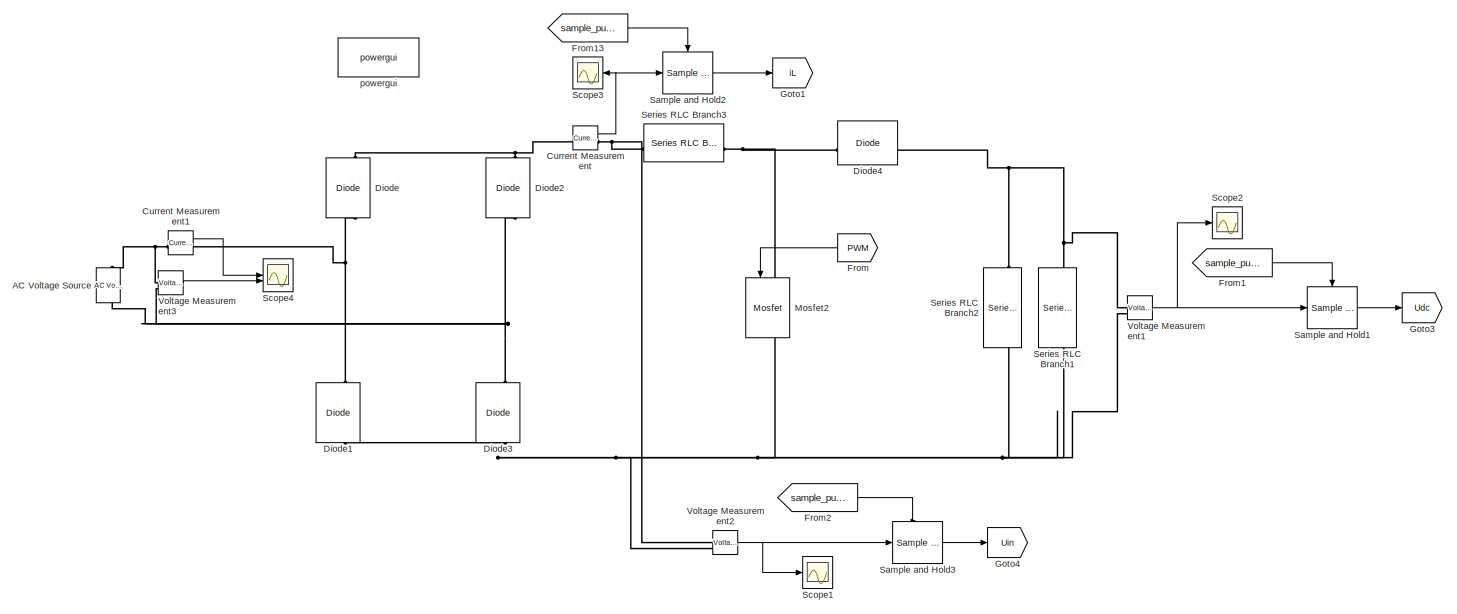
[diagram: root canvas - part 1/2, full width, top band]
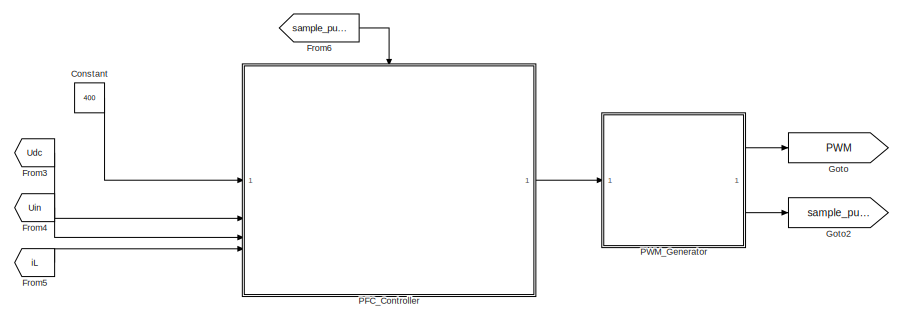
[diagram: root canvas - part 2/2, bottom center region]
MODEL slx_300bfa380520
KIND model
CONFIG AbsTol = auto
CONFIG EnableMultiTasking = off
CONFIG FixedStep = auto
CONFIG MaxStep = 1e-8
CONFIG MinStep = auto
CONFIG RelTol = 1e-7
CONFIG SampleTimeConstraint = Unconstrained
CONFIG SolverName = VariableStepAuto
CONFIG StartTime = 0.0
CONFIG StopTime = 1
BLOCK [Reference] AC Voltage Source  REF=spsACVoltageSourceLib/AC Voltage Source
  LibrarySourceBlock = sps_lib/Sources/AC Voltage Source
  SourceBlock = spsACVoltageSourceLib/AC Voltage Source
  SourceType = AC Voltage Source
BLOCK [Constant] Constant
  Value = 400
BLOCK [Reference] Current Measurement  REF=spsCurrentMeasurementLib/Current Measurement
  LibrarySourceBlock = sps_lib/Sensors and Measurements/Current Measurement
  SourceBlock = spsCurrentMeasurementLib/Current Measurement
  SourceType = Current Measurement
  UserDataPersistent = on
BLOCK [Reference] Current Measurement1  REF=spsCurrentMeasurementLib/Current Measurement
  LibrarySourceBlock = sps_lib/Sensors and Measurements/Current Measurement
  SourceBlock = spsCurrentMeasurementLib/Current Measurement
  SourceType = Current Measurement
  UserDataPersistent = on
BLOCK [Reference] Diode  REF=spsDiodeLib/Diode
  LibrarySourceBlock = sps_lib/Power Electronics/Diode
  NameLocation = right
  SourceBlock = spsDiodeLib/Diode
  SourceType = Diode
BLOCK [Reference] Diode1  REF=spsDiodeLib/Diode
  LibrarySourceBlock = sps_lib/Power Electronics/Diode
  NameLocation = right
  SourceBlock = spsDiodeLib/Diode
  SourceType = Diode
BLOCK [Reference] Diode2  REF=spsDiodeLib/Diode
  LibrarySourceBlock = sps_lib/Power Electronics/Diode
  NameLocation = right
  SourceBlock = spsDiodeLib/Diode
  SourceType = Diode
BLOCK [Reference] Diode3  REF=spsDiodeLib/Diode
  LibrarySourceBlock = sps_lib/Power Electronics/Diode
  NameLocation = right
  SourceBlock = spsDiodeLib/Diode
  SourceType = Diode
BLOCK [Reference] Diode4  REF=spsDiodeLib/Diode
  LibrarySourceBlock = sps_lib/Power Electronics/Diode
  SourceBlock = spsDiodeLib/Diode
  SourceType = Diode
BLOCK [From] From
  GotoTag = PWM
  NameLocation = top
BLOCK [From] From1
  GotoTag = sample_pulse
BLOCK [From] From13
  GotoTag = sample_pulse
BLOCK [From] From2
  GotoTag = sample_pulse
BLOCK [From] From3
  GotoTag = Udc
BLOCK [From] From4
  GotoTag = Uin
BLOCK [From] From5
  GotoTag = iL
BLOCK [From] From6
  GotoTag = sample_pulse
BLOCK [Goto] Goto
  GotoTag = PWM
BLOCK [Goto] Goto1
  GotoTag = iL
BLOCK [Goto] Goto2
  GotoTag = sample_pulse
BLOCK [Goto] Goto3
  GotoTag = Udc
BLOCK [Goto] Goto4
  GotoTag = Uin
BLOCK [Reference] Mosfet2  REF=spsMosfetLib/Mosfet
  LibrarySourceBlock = sps_lib/Power Electronics/Mosfet
  NameLocation = left
  SourceBlock = spsMosfetLib/Mosfet
  SourceType = Mosfet
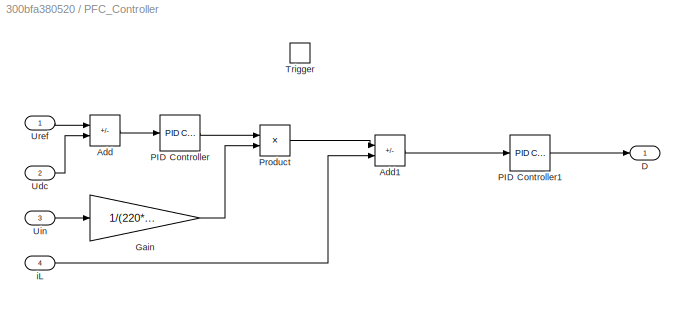
BLOCK [SubSystem] PFC_Controller
BLOCK [Sum] PFC_Controller/Add
  IconShape = rectangular
  Inputs = +-
BLOCK [Sum] PFC_Controller/Add1
  IconShape = rectangular
  Inputs = +-
BLOCK [Outport] PFC_Controller/D
BLOCK [Gain] PFC_Controller/Gain
  Gain = 1/(220*sqrt(2))
BLOCK [Reference] PFC_Controller/PID Controller  REF=slpidlib/PID Controller
  LibrarySourceBlock = simulink/Continuous/PID Controller
  SourceBlock = slpidlib/PID Controller
  SourceType = PID 1dof
BLOCK [Reference] PFC_Controller/PID Controller1  REF=slpidlib/PID Controller
  LibrarySourceBlock = simulink/Continuous/PID Controller
  SourceBlock = slpidlib/PID Controller
  SourceType = PID 1dof
BLOCK [Product] PFC_Controller/Product
BLOCK [TriggerPort] PFC_Controller/Trigger
  PortDimensions = 1
  StatesWhenEnabling = held
  VariantControl = (inherit)
BLOCK [Inport] PFC_Controller/Udc
  Port = 2
BLOCK [Inport] PFC_Controller/Uin
  Port = 3
BLOCK [Inport] PFC_Controller/Uref
BLOCK [Inport] PFC_Controller/iL
  Port = 4
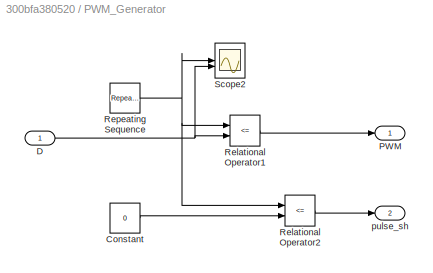
BLOCK [SubSystem] PWM_Generator
BLOCK [Constant] PWM_Generator/Constant
  Value = 0
BLOCK [Inport] PWM_Generator/D
BLOCK [Outport] PWM_Generator/PWM
BLOCK [RelationalOperator] PWM_Generator/Relational Operator1
  InputSameDT = off
  Operator = <=
  OutDataTypeStr = boolean
  RndMeth = Simplest
BLOCK [RelationalOperator] PWM_Generator/Relational Operator2
  InputSameDT = off
  Operator = <=
  OutDataTypeStr = boolean
  RndMeth = Simplest
BLOCK [Reference] PWM_Generator/Repeating Sequence  REF=simulink/Sources/Repeating
Sequence
  SourceBlock = simulink/Sources/Repeating\nSequence
  SourceType = Repeating table
BLOCK [Scope] PWM_Generator/Scope2
  Floating = off
  NumInputPorts = 2
  ScopeSpecificationString = Simulink.scopes.TimeScopeBlockCfg('CurrentConfiguration', extmgr.ConfigurationSet(extmgr.Configuration('Core','General UI',true,'FigureColor',[1 1 1]),extmgr.Configuration('Core','Source UI',true),extmgr.Configuration('Sources','WiredSimulink',true,'DataLoggingVariableName','ScopeData2'),extmgr.Configuration('Visuals','Time Domain',true,'SerializedDisplays',{struct('MinYLimReal','-1.0706','MaxYLim...<+2712ch>
BLOCK [Outport] PWM_Generator/pulse_sh
  Port = 2
BLOCK [Reference] Sample and Hold1  REF=dspsigops/Sample
and Hold
  SourceBlock = dspsigops/Sample\nand Hold
  SourceType = Sample and Hold
BLOCK [Reference] Sample and Hold2  REF=dspsigops/Sample
and Hold
  SourceBlock = dspsigops/Sample\nand Hold
  SourceType = Sample and Hold
BLOCK [Reference] Sample and Hold3  REF=dspsigops/Sample
and Hold
  SourceBlock = dspsigops/Sample\nand Hold
  SourceType = Sample and Hold
BLOCK [Scope] Scope1
  Floating = off
  NumInputPorts = 1
  ScopeSpecificationString = Simulink.scopes.TimeScopeBlockCfg('CurrentConfiguration', extmgr.ConfigurationSet(extmgr.Configuration('Core','General UI',true,'FigureColor',[1 1 1]),extmgr.Configuration('Core','Source UI',true),extmgr.Configuration('Sources','WiredSimulink',true,'DataLoggingVariableName','ScopeData1'),extmgr.Configuration('Visuals','Time Domain',true,'SerializedDisplays',{struct('MinYLimReal','-64.83136','MaxYL...<+2714ch>
BLOCK [Scope] Scope2
  Floating = off
  NumInputPorts = 1
  ScopeSpecificationString = Simulink.scopes.TimeScopeBlockCfg('CurrentConfiguration', extmgr.ConfigurationSet(extmgr.Configuration('Core','General UI',true,'FigureColor',[1 1 1]),extmgr.Configuration('Core','Source UI',true),extmgr.Configuration('Sources','WiredSimulink',true),extmgr.Configuration('Visuals','Time Domain',true,'SerializedDisplays',{struct('MinYLimReal','396.91776','MaxYLimReal','401.9404','YLabelReal','','Min...<+2375ch>
BLOCK [Scope] Scope3
  Floating = off
  NameLocation = top
  NumInputPorts = 1
  ScopeSpecificationString = Simulink.scopes.TimeScopeBlockCfg('CurrentConfiguration', extmgr.ConfigurationSet(extmgr.Configuration('Core','General UI',true,'FigureColor',[1 1 1]),extmgr.Configuration('Core','Source UI',true),extmgr.Configuration('Sources','WiredSimulink',true,'DataLoggingVariableName','ScopeData2'),extmgr.Configuration('Visuals','Time Domain',true,'SerializedDisplays',{struct('MinYLimReal','-3.44506','MaxYLi...<+2703ch>
BLOCK [Scope] Scope4
  Floating = off
  NumInputPorts = 2
  ScopeSpecificationString = Simulink.scopes.TimeScopeBlockCfg('CurrentConfiguration', extmgr.ConfigurationSet(extmgr.Configuration('Core','General UI',true,'FigureColor',[1 1 1]),extmgr.Configuration('Core','Source UI',true),extmgr.Configuration('Sources','WiredSimulink',true,'DataLoggingVariableName','ScopeData3'),extmgr.Configuration('Visuals','Time Domain',true,'SerializedDisplays',{struct('MinYLimReal','-388.90873','MaxY...<+2738ch>
BLOCK [Reference] Series RLC Branch1  REF=spsSeriesRLCBranchLib/Series RLC Branch
  LibrarySourceBlock = sps_lib/Passives/Series RLC Branch
  NameLocation = left
  SourceBlock = spsSeriesRLCBranchLib/Series RLC Branch
  SourceType = Series RLC Branch
BLOCK [Reference] Series RLC Branch2  REF=spsSeriesRLCBranchLib/Series RLC Branch
  LibrarySourceBlock = sps_lib/Passives/Series RLC Branch
  NameLocation = left
  SourceBlock = spsSeriesRLCBranchLib/Series RLC Branch
  SourceType = Series RLC Branch
BLOCK [Reference] Series RLC Branch3  REF=spsSeriesRLCBranchLib/Series RLC Branch
  LibrarySourceBlock = sps_lib/Passives/Series RLC Branch
  NameLocation = top
  SourceBlock = spsSeriesRLCBranchLib/Series RLC Branch
  SourceType = Series RLC Branch
BLOCK [Reference] Voltage Measurement1  REF=spsVoltageMeasurementLib/Voltage Measurement
  LibrarySourceBlock = sps_lib/Sensors and Measurements/Voltage Measurement
  SourceBlock = spsVoltageMeasurementLib/Voltage Measurement
  SourceType = Voltage Measurement
  UserDataPersistent = on
BLOCK [Reference] Voltage Measurement2  REF=spsVoltageMeasurementLib/Voltage Measurement
  LibrarySourceBlock = sps_lib/Sensors and Measurements/Voltage Measurement
  SourceBlock = spsVoltageMeasurementLib/Voltage Measurement
  SourceType = Voltage Measurement
  UserDataPersistent = on
BLOCK [Reference] Voltage Measurement3  REF=spsVoltageMeasurementLib/Voltage Measurement
  LibrarySourceBlock = sps_lib/Sensors and Measurements/Voltage Measurement
  SourceBlock = spsVoltageMeasurementLib/Voltage Measurement
  SourceType = Voltage Measurement
  UserDataPersistent = on
BLOCK [Reference] powergui  REF=spspowerguiLib/powergui
  Priority = 1
  SourceBlock = spspowerguiLib/powergui
  SourceType = PSB option menu block
LINE Constant:1 -> PFC_Controller:1
LINE Current Measurement1:1 -> Scope4:1
NET Current Measurement:1 -> Sample and Hold2:1, Scope3:1
LINE From13:1 -> Sample and Hold2:trigger
LINE From1:1 -> Sample and Hold1:trigger
LINE From2:1 -> Sample and Hold3:trigger
LINE From3:1 -> PFC_Controller:2
LINE From4:1 -> PFC_Controller:3
LINE From5:1 -> PFC_Controller:4
LINE From6:1 -> PFC_Controller:trigger
LINE From:1 -> Mosfet2:1
LINE PFC_Controller/Add1:1 -> PFC_Controller/PID Controller1:1
LINE PFC_Controller/Add:1 -> PFC_Controller/PID Controller:1
LINE PFC_Controller/Gain:1 -> PFC_Controller/Product:2
LINE PFC_Controller/PID Controller1:1 -> PFC_Controller/D:1
LINE PFC_Controller/PID Controller:1 -> PFC_Controller/Product:1
LINE PFC_Controller/Product:1 -> PFC_Controller/Add1:1
LINE PFC_Controller/Udc:1 -> PFC_Controller/Add:2
LINE PFC_Controller/Uin:1 -> PFC_Controller/Gain:1
LINE PFC_Controller/Uref:1 -> PFC_Controller/Add:1
LINE PFC_Controller/iL:1 -> PFC_Controller/Add1:2
LINE PFC_Controller:1 -> PWM_Generator:1
LINE PWM_Generator/Constant:1 -> PWM_Generator/Relational Operator2:2
NET PWM_Generator/D:1 -> PWM_Generator/Relational Operator1:2, PWM_Generator/Scope2:2
LINE PWM_Generator/Relational Operator1:1 -> PWM_Generator/PWM:1
LINE PWM_Generator/Relational Operator2:1 -> PWM_Generator/pulse_sh:1
NET PWM_Generator/Repeating Sequence:1 -> PWM_Generator/Relational Operator1:1, PWM_Generator/Relational Operator2:1, PWM_Generator/Scope2:1
LINE PWM_Generator:1 -> Goto:1
LINE PWM_Generator:2 -> Goto2:1
LINE Sample and Hold1:1 -> Goto3:1
LINE Sample and Hold2:1 -> Goto1:1
LINE Sample and Hold3:1 -> Goto4:1
NET Voltage Measurement1:1 -> Sample and Hold1:1, Scope2:1
NET Voltage Measurement2:1 -> Sample and Hold3:1, Scope1:1
LINE Voltage Measurement3:1 -> Scope4:2
PNET net1: AC Voltage Source:LConn1 -- Diode2:LConn1 -- Diode3:RConn1 -- Voltage Measurement3:LConn2
PNET net2: AC Voltage Source:RConn1 -- Current Measurement1:LConn1 -- Voltage Measurement3:LConn1
PNET net3: Current Measurement1:RConn1 -- Diode1:RConn1 -- Diode:LConn1
PNET net4: Current Measurement:LConn1 -- Diode2:RConn1 -- Diode:RConn1
PNET net5: Current Measurement:RConn1 -- Series RLC Branch3:RConn1 -- Voltage Measurement2:LConn1
PNET net6: Diode1:LConn1 -- Diode3:LConn1 -- Mosfet2:RConn1 -- Series RLC Branch1:RConn1 -- Series RLC Branch2:RConn1 -- Voltage Measurement1:LConn2 -- Voltage Measurement2:LConn2
PNET net7: Diode4:LConn1 -- Mosfet2:LConn1 -- Series RLC Branch3:LConn1
PNET net8: Diode4:RConn1 -- Series RLC Branch1:LConn1 -- Series RLC Branch2:LConn1 -- Voltage Measurement1:LConn1
note: NET lines group one-source signal fan-out (src -> all destinations, sorted); 1:1 wires keep LINE; PNET lines group multi-terminal physical nets as a canonical sorted terminal list (undirected conserving connections); 2-terminal nets keep the pairwise PLINE form
